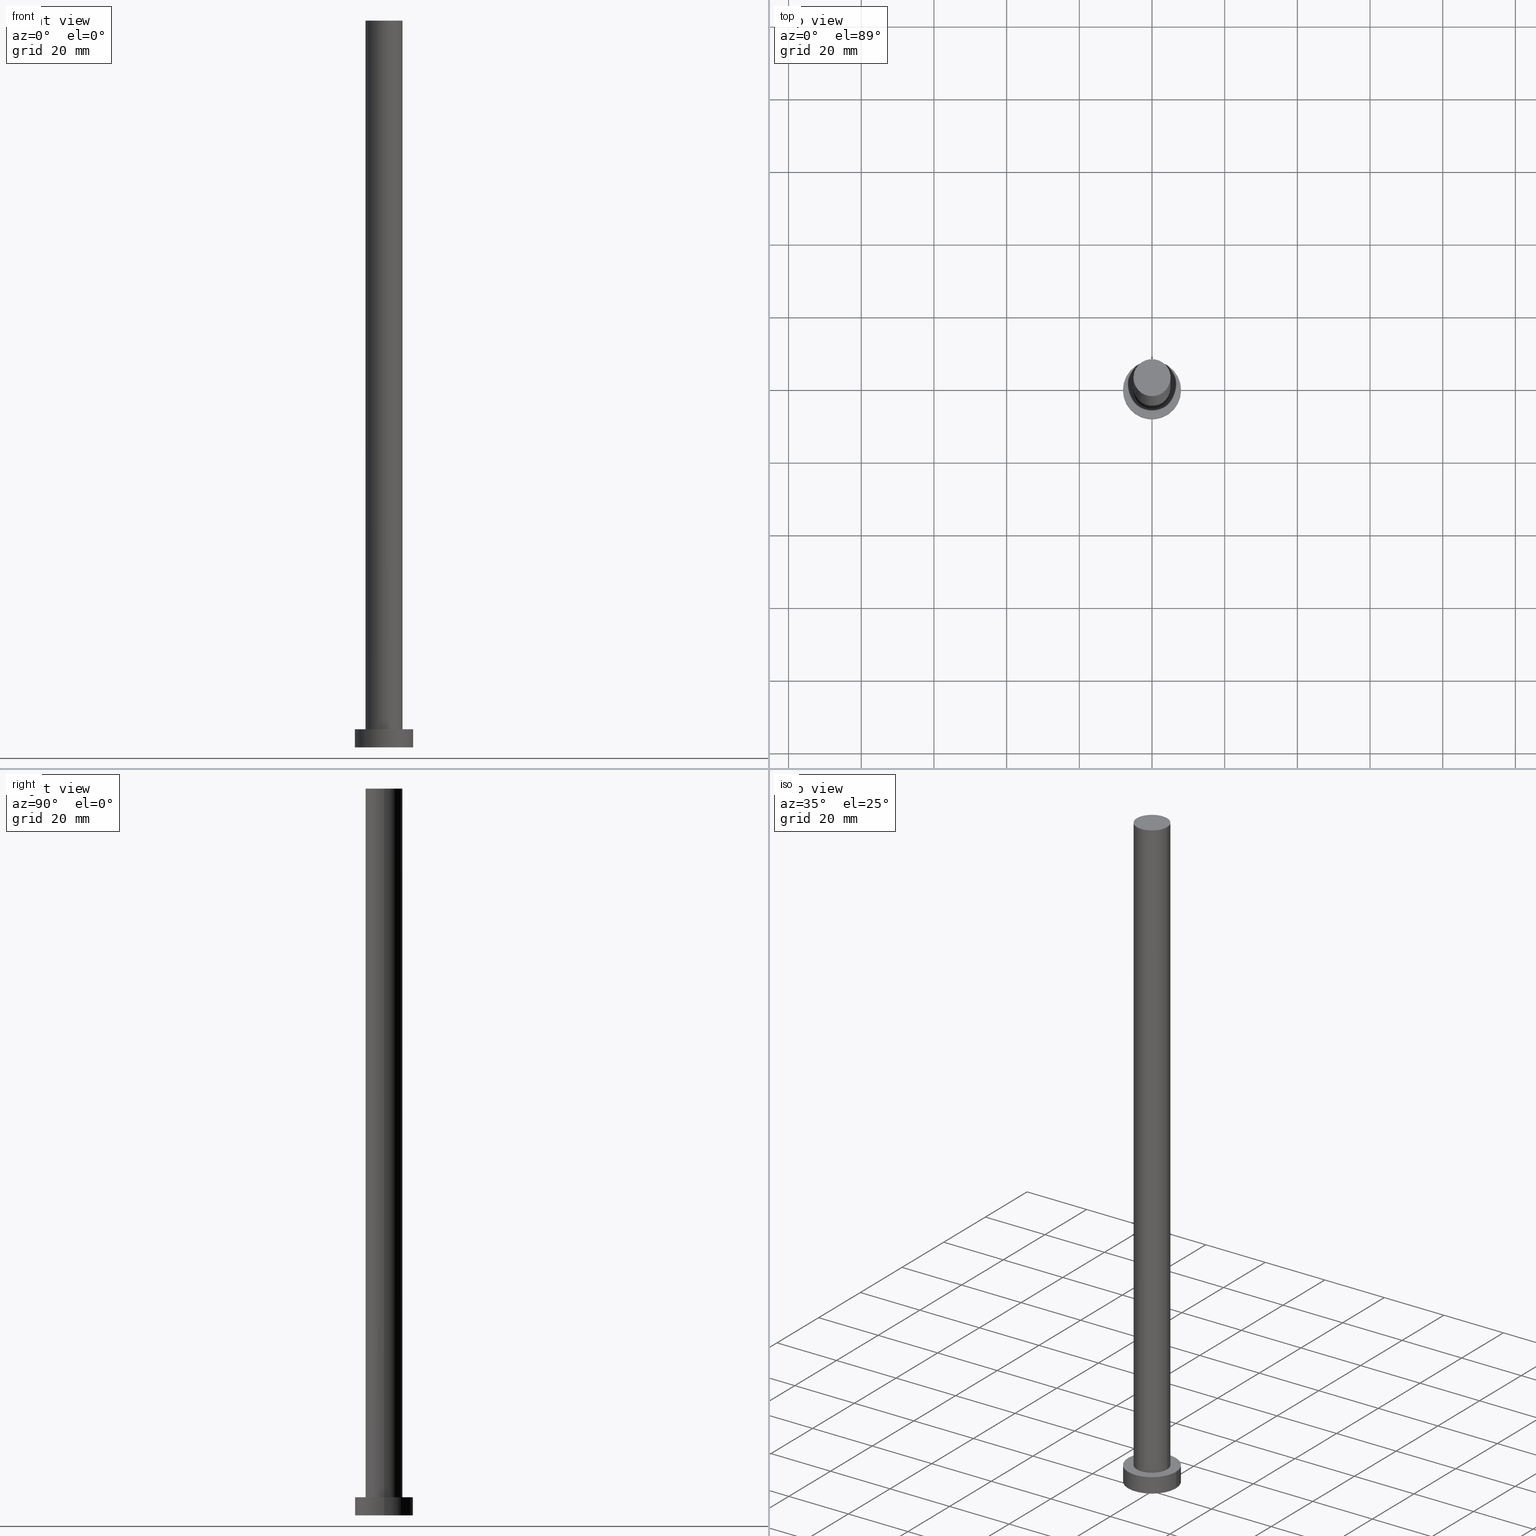
[diagram: canonical four-view strip — front | top / right | iso, engineering-drawing reading convention]
A machine part, canonical four-view strip (front | top / right | iso — engineering-drawing reading convention). The complete STEP part file that produces these views, byte-faithful:
ISO-10303-21;
HEADER;
FILE_DESCRIPTION (( 'STEP AP203' ),
    '1' );
FILE_NAME ('5081.STEP',
    '2023-02-12T11:24:55',
    ( '' ),
    ( '' ),
    'SwSTEP 2.0',
    'SolidWorks 2019',
    '' );
FILE_SCHEMA (( 'CONFIG_CONTROL_DESIGN' ));
ENDSEC;

DATA;
#1 = AXIS2_PLACEMENT_3D ( 'NONE', #143, #224, #202 ) ;
#2 = AXIS2_PLACEMENT_3D ( 'NONE', #117, #198, #238 ) ;
#3 = FACE_OUTER_BOUND ( 'NONE', #116, .T. ) ;
#4 = ORIENTED_EDGE ( 'NONE', *, *, #95, .T. ) ;
#5 = FACE_OUTER_BOUND ( 'NONE', #208, .T. ) ;
#6 = EDGE_LOOP ( 'NONE', ( #43, #107 ) ) ;
#7 = APPROVAL_STATUS ( 'not_yet_approved' ) ;
#8 = ORIENTED_EDGE ( 'NONE', *, *, #11, .T. ) ;
#9 = ADVANCED_FACE ( 'NONE', ( #93, #91 ), #162, .T. ) ;
#10 = AXIS2_PLACEMENT_3D ( 'NONE', #124, #152, #26 ) ;
#11 = EDGE_CURVE ( 'NONE', #77, #64, #148, .T. ) ;
#12 = CARTESIAN_POINT ( 'NONE',  ( 0.000000000000000000, 0.000000000000000000, 5.000000000000000000 ) ) ;
#13 = CARTESIAN_POINT ( 'NONE',  ( 0.000000000000000000, 0.000000000000000000, 0.000000000000000000 ) ) ;
#14 = VERTEX_POINT ( 'NONE', #24 ) ;
#15 = CARTESIAN_POINT ( 'NONE',  ( 0.000000000000000000, 0.000000000000000000, 0.000000000000000000 ) ) ;
#16 = ORIENTED_EDGE ( 'NONE', *, *, #210, .F. ) ;
#17 = DIRECTION ( 'NONE',  ( 0.000000000000000000, 0.000000000000000000, 1.000000000000000000 ) ) ;
#18 = DIRECTION ( 'NONE',  ( 1.000000000000000000, 0.000000000000000000, 0.000000000000000000 ) ) ;
#19 = ORIENTED_EDGE ( 'NONE', *, *, #105, .F. ) ;
#20 = AXIS2_PLACEMENT_3D ( 'NONE', #12, #94, #18 ) ;
#21 = APPLICATION_PROTOCOL_DEFINITION ( 'international standard', 'config_control_design', 1994, #67 ) ;
#22 = VECTOR ( 'NONE', #90, 1000.000000000000000 ) ;
#23 = CALENDAR_DATE ( 2023, 12, 2 ) ;
#24 = CARTESIAN_POINT ( 'NONE',  ( -5.100000000000001421, 0.000000000000000000, 200.0000000000000000 ) ) ;
#25 = DESIGN_CONTEXT ( 'detailed design', #67, 'design' ) ;
#26 = DIRECTION ( 'NONE',  ( 1.000000000000000000, 0.000000000000000000, 0.000000000000000000 ) ) ;
#27 = CIRCLE ( 'NONE', #177, 5.100000000000001421 ) ;
#28 = PLANE ( 'NONE',  #132 ) ;
#29 = APPROVAL_PERSON_ORGANIZATION ( #233, #46, #88 ) ;
#30 = ORIENTED_EDGE ( 'NONE', *, *, #254, .F. ) ;
#31 = DATE_AND_TIME ( #23, #79 ) ;
#32 = LINE ( 'NONE', #106, #78 ) ;
#33 = EDGE_LOOP ( 'NONE', ( #171, #16 ) ) ;
#34 = COORDINATED_UNIVERSAL_TIME_OFFSET ( 1, 0, .AHEAD. ) ;
#35 = AXIS2_PLACEMENT_3D ( 'NONE', #13, #166, #227 ) ;
#36 = EDGE_CURVE ( 'NONE', #89, #14, #27, .T. ) ;
#37 = DATE_AND_TIME ( #131, #133 ) ;
#38 = SHAPE_DEFINITION_REPRESENTATION ( #183, #120 ) ;
#39 = CC_DESIGN_PERSON_AND_ORGANIZATION_ASSIGNMENT ( #49, #189, ( #134 ) ) ;
#40 = DIRECTION ( 'NONE',  ( 0.000000000000000000, 0.000000000000000000, 1.000000000000000000 ) ) ;
#41 = ORIENTED_EDGE ( 'NONE', *, *, #252, .F. ) ;
#42 = CARTESIAN_POINT ( 'NONE',  ( 0.000000000000000000, 0.000000000000000000, 5.000000000000000000 ) ) ;
#43 = ORIENTED_EDGE ( 'NONE', *, *, #216, .T. ) ;
#44 = CC_DESIGN_DATE_AND_TIME_ASSIGNMENT ( #83, #229, ( #212 ) ) ;
#45 = DIRECTION ( 'NONE',  ( 1.000000000000000000, 0.000000000000000000, 0.000000000000000000 ) ) ;
#46 = APPROVAL ( #7, 'NEUR�EN�' ) ;
#47 =( LENGTH_UNIT ( ) NAMED_UNIT ( * ) SI_UNIT ( .MILLI., .METRE. ) );
#48 =( NAMED_UNIT ( * ) SI_UNIT ( $, .STERADIAN. ) SOLID_ANGLE_UNIT ( ) );
#49 = PERSON_AND_ORGANIZATION ( #146, #245 ) ;
#50 = PRODUCT_DEFINITION_FORMATION_WITH_SPECIFIED_SOURCE ( 'LIBOVOLN�', '', #199, .NOT_KNOWN. ) ;
#51 = PERSON_AND_ORGANIZATION_ROLE ( 'classification_officer' ) ;
#52 = CIRCLE ( 'NONE', #240, 8.000000000000000000 ) ;
#53 = PERSON_AND_ORGANIZATION ( #146, #245 ) ;
#54 = COORDINATED_UNIVERSAL_TIME_OFFSET ( 1, 0, .AHEAD. ) ;
#55 = DIRECTION ( 'NONE',  ( 1.000000000000000000, 0.000000000000000000, -0.000000000000000000 ) ) ;
#56 = DIRECTION ( 'NONE',  ( 1.000000000000000000, 0.000000000000000000, 0.000000000000000000 ) ) ;
#57 = ADVANCED_FACE ( 'NONE', ( #126 ), #28, .F. ) ;
#58 = CIRCLE ( 'NONE', #215, 8.000000000000000000 ) ;
#59 = CARTESIAN_POINT ( 'NONE',  ( 0.000000000000000000, 0.000000000000000000, 200.0000000000000000 ) ) ;
#60 = AXIS2_PLACEMENT_3D ( 'NONE', #15, #40, #45 ) ;
#61 = DATE_AND_TIME ( #99, #86 ) ;
#62 = DIRECTION ( 'NONE',  ( -1.000000000000000000, 0.000000000000000000, 0.000000000000000000 ) ) ;
#63 = PERSON_AND_ORGANIZATION ( #146, #245 ) ;
#64 = VERTEX_POINT ( 'NONE', #128 ) ;
#65 = ADVANCED_FACE ( 'NONE', ( #3 ), #82, .T. ) ;
#66 = PERSON_AND_ORGANIZATION_ROLE ( 'design_supplier' ) ;
#67 = APPLICATION_CONTEXT ( 'configuration controlled 3d designs of mechanical parts and assemblies' ) ;
#68 = DIRECTION ( 'NONE',  ( -1.000000000000000000, 0.000000000000000000, 0.000000000000000000 ) ) ;
#69 = DIRECTION ( 'NONE',  ( -0.000000000000000000, -0.000000000000000000, -1.000000000000000000 ) ) ;
#70 = CC_DESIGN_APPROVAL ( #46, ( #50 ) ) ;
#71 = PRODUCT_RELATED_PRODUCT_CATEGORY ( 'detail', '', ( #199 ) ) ;
#72 = DIRECTION ( 'NONE',  ( 0.000000000000000000, 0.000000000000000000, 1.000000000000000000 ) ) ;
#73 = CYLINDRICAL_SURFACE ( 'NONE', #2, 5.100000000000001421 ) ;
#74 = ORIENTED_EDGE ( 'NONE', *, *, #254, .T. ) ;
#75 = CARTESIAN_POINT ( 'NONE',  ( 5.100000000000001421, 6.245698675651502811E-16, 5.000000000000000000 ) ) ;
#76 = EDGE_CURVE ( 'NONE', #201, #77, #32, .T. ) ;
#77 = VERTEX_POINT ( 'NONE', #226 ) ;
#78 = VECTOR ( 'NONE', #165, 1000.000000000000000 ) ;
#79 = LOCAL_TIME ( 12, 24, 55.00000000000000000, #225 ) ;
#80 = CC_DESIGN_DATE_AND_TIME_ASSIGNMENT ( #61, #150, ( #134 ) ) ;
#81 = MECHANICAL_CONTEXT ( 'NONE', #159, 'mechanical' ) ;
#82 = CYLINDRICAL_SURFACE ( 'NONE', #173, 8.000000000000000000 ) ;
#83 = DATE_AND_TIME ( #155, #163 ) ;
#84 = DIRECTION ( 'NONE',  ( 0.000000000000000000, 0.000000000000000000, 1.000000000000000000 ) ) ;
#85 = ADVANCED_FACE ( 'NONE', ( #5 ), #206, .T. ) ;
#86 = LOCAL_TIME ( 12, 24, 55.00000000000000000, #241 ) ;
#87 = AXIS2_PLACEMENT_3D ( 'NONE', #96, #141, #160 ) ;
#88 = APPROVAL_ROLE ( '' ) ;
#89 = VERTEX_POINT ( 'NONE', #109 ) ;
#90 = DIRECTION ( 'NONE',  ( -0.000000000000000000, -0.000000000000000000, -1.000000000000000000 ) ) ;
#91 = FACE_OUTER_BOUND ( 'NONE', #6, .T. ) ;
#92 = CARTESIAN_POINT ( 'NONE',  ( 0.000000000000000000, 0.000000000000000000, 5.000000000000000000 ) ) ;
#93 = FACE_BOUND ( 'NONE', #255, .T. ) ;
#94 = DIRECTION ( 'NONE',  ( 0.000000000000000000, 0.000000000000000000, 1.000000000000000000 ) ) ;
#95 = EDGE_CURVE ( 'NONE', #14, #218, #193, .T. ) ;
#96 = CARTESIAN_POINT ( 'NONE',  ( 0.000000000000000000, 0.000000000000000000, 5.000000000000000000 ) ) ;
#97 = ORIENTED_EDGE ( 'NONE', *, *, #179, .T. ) ;
#98 = CIRCLE ( 'NONE', #1, 5.100000000000001421 ) ;
#99 = CALENDAR_DATE ( 2023, 12, 2 ) ;
#100 = CC_DESIGN_PERSON_AND_ORGANIZATION_ASSIGNMENT ( #149, #209, ( #199 ) ) ;
#101 =( NAMED_UNIT ( * ) PLANE_ANGLE_UNIT ( ) SI_UNIT ( $, .RADIAN. ) );
#102 = AXIS2_PLACEMENT_3D ( 'NONE', #92, #176, #158 ) ;
#103 = CARTESIAN_POINT ( 'NONE',  ( 0.000000000000000000, 0.000000000000000000, 0.000000000000000000 ) ) ;
#104 = APPROVAL_STATUS ( 'not_yet_approved' ) ;
#105 = EDGE_CURVE ( 'NONE', #218, #192, #178, .T. ) ;
#106 = CARTESIAN_POINT ( 'NONE',  ( -8.000000000000000000, 0.000000000000000000, 5.000000000000000000 ) ) ;
#107 = ORIENTED_EDGE ( 'NONE', *, *, #243, .T. ) ;
#108 = APPROVAL_DATE_TIME ( #170, #169 ) ;
#109 = CARTESIAN_POINT ( 'NONE',  ( 5.100000000000001421, 6.245698675651502811E-16, 200.0000000000000000 ) ) ;
#110 = COORDINATED_UNIVERSAL_TIME_OFFSET ( 1, 0, .AHEAD. ) ;
#111 = ADVANCED_FACE ( 'NONE', ( #181 ), #253, .T. ) ;
#112 = CARTESIAN_POINT ( 'NONE',  ( 0.000000000000000000, 0.000000000000000000, 200.0000000000000000 ) ) ;
#113 = ORIENTED_EDGE ( 'NONE', *, *, #76, .F. ) ;
#114 = UNCERTAINTY_MEASURE_WITH_UNIT (LENGTH_MEASURE( 1.000000000000000082E-05 ), #47, 'distance_accuracy_value', 'NONE');
#115 = FACE_OUTER_BOUND ( 'NONE', #221, .T. ) ;
#116 = EDGE_LOOP ( 'NONE', ( #196, #182, #236, #8 ) ) ;
#117 = CARTESIAN_POINT ( 'NONE',  ( 0.000000000000000000, 0.000000000000000000, 200.0000000000000000 ) ) ;
#118 = CARTESIAN_POINT ( 'NONE',  ( 0.000000000000000000, 0.000000000000000000, 5.000000000000000000 ) ) ;
#119 = CARTESIAN_POINT ( 'NONE',  ( -5.100000000000001421, 0.000000000000000000, 5.000000000000000000 ) ) ;
#120 = ADVANCED_BREP_SHAPE_REPRESENTATION ( '5081', ( #123, #10 ), #156 ) ;
#121 = CARTESIAN_POINT ( 'NONE',  ( 0.000000000000000000, 0.000000000000000000, 200.0000000000000000 ) ) ;
#122 = VECTOR ( 'NONE', #69, 1000.000000000000000 ) ;
#123 = MANIFOLD_SOLID_BREP ( 'P�idat vysunut�m3', #244 ) ;
#124 = CARTESIAN_POINT ( 'NONE',  ( 0.000000000000000000, 0.000000000000000000, 0.000000000000000000 ) ) ;
#125 = DIRECTION ( 'NONE',  ( 1.000000000000000000, 0.000000000000000000, 0.000000000000000000 ) ) ;
#126 = FACE_OUTER_BOUND ( 'NONE', #33, .T. ) ;
#127 = AXIS2_PLACEMENT_3D ( 'NONE', #112, #180, #55 ) ;
#128 = CARTESIAN_POINT ( 'NONE',  ( 8.000000000000000000, 9.797174393178825657E-16, 0.000000000000000000 ) ) ;
#129 = APPROVAL_ROLE ( '' ) ;
#130 = ORIENTED_EDGE ( 'NONE', *, *, #36, .T. ) ;
#131 = CALENDAR_DATE ( 2023, 12, 2 ) ;
#132 = AXIS2_PLACEMENT_3D ( 'NONE', #103, #84, #188 ) ;
#133 = LOCAL_TIME ( 12, 24, 55.00000000000000000, #54 ) ;
#134 = PRODUCT_DEFINITION ( 'NEZN�M�', '', #50, #25 ) ;
#135 = SECURITY_CLASSIFICATION_LEVEL ( 'unclassified' ) ;
#136 = CARTESIAN_POINT ( 'NONE',  ( 5.100000000000001421, 6.245698675651502811E-16, 200.0000000000000000 ) ) ;
#137 = CIRCLE ( 'NONE', #20, 5.100000000000001421 ) ;
#138 = DIRECTION ( 'NONE',  ( -0.000000000000000000, -0.000000000000000000, -1.000000000000000000 ) ) ;
#139 = ORIENTED_EDGE ( 'NONE', *, *, #95, .F. ) ;
#140 = PLANE ( 'NONE',  #127 ) ;
#141 = DIRECTION ( 'NONE',  ( 0.000000000000000000, 0.000000000000000000, 1.000000000000000000 ) ) ;
#142 = EDGE_LOOP ( 'NONE', ( #97, #130 ) ) ;
#143 = CARTESIAN_POINT ( 'NONE',  ( 0.000000000000000000, 0.000000000000000000, 200.0000000000000000 ) ) ;
#144 = APPROVAL_ROLE ( '' ) ;
#145 = DIRECTION ( 'NONE',  ( 1.000000000000000000, 0.000000000000000000, -0.000000000000000000 ) ) ;
#146 = PERSON ( 'NEUR�EN�', 'NEUR�EN�', 'NEUR�EN�', ('NEUR�EN�'), ('NEUR�EN�'), ('NEUR�EN�') ) ;
#147 = DIRECTION ( 'NONE',  ( -0.000000000000000000, -0.000000000000000000, -1.000000000000000000 ) ) ;
#148 = CIRCLE ( 'NONE', #35, 8.000000000000000000 ) ;
#149 = PERSON_AND_ORGANIZATION ( #146, #245 ) ;
#150 = DATE_TIME_ROLE ( 'creation_date' ) ;
#151 = CC_DESIGN_PERSON_AND_ORGANIZATION_ASSIGNMENT ( #53, #172, ( #50 ) ) ;
#152 = DIRECTION ( 'NONE',  ( 0.000000000000000000, 0.000000000000000000, 1.000000000000000000 ) ) ;
#153 = APPROVAL_DATE_TIME ( #37, #46 ) ;
#154 = ORIENTED_EDGE ( 'NONE', *, *, #210, .T. ) ;
#155 = CALENDAR_DATE ( 2023, 12, 2 ) ;
#156 =( GEOMETRIC_REPRESENTATION_CONTEXT ( 3 ) GLOBAL_UNCERTAINTY_ASSIGNED_CONTEXT ( ( #114 ) ) GLOBAL_UNIT_ASSIGNED_CONTEXT ( ( #47, #101, #48 ) ) REPRESENTATION_CONTEXT ( 'NONE', 'WORKASPACE' ) );
#157 = ADVANCED_FACE ( 'NONE', ( #115 ), #73, .T. ) ;
#158 = DIRECTION ( 'NONE',  ( -1.000000000000000000, 0.000000000000000000, 0.000000000000000000 ) ) ;
#159 = APPLICATION_CONTEXT ( 'configuration controlled 3d designs of mechanical parts and assemblies' ) ;
#160 = DIRECTION ( 'NONE',  ( 1.000000000000000000, 0.000000000000000000, 0.000000000000000000 ) ) ;
#161 = LINE ( 'NONE', #136, #22 ) ;
#162 = PLANE ( 'NONE',  #222 ) ;
#163 = LOCAL_TIME ( 12, 24, 55.00000000000000000, #110 ) ;
#164 = ORIENTED_EDGE ( 'NONE', *, *, #191, .T. ) ;
#165 = DIRECTION ( 'NONE',  ( -0.000000000000000000, -0.000000000000000000, -1.000000000000000000 ) ) ;
#166 = DIRECTION ( 'NONE',  ( 0.000000000000000000, 0.000000000000000000, 1.000000000000000000 ) ) ;
#167 = CC_DESIGN_APPROVAL ( #169, ( #212 ) ) ;
#168 = APPROVAL_DATE_TIME ( #31, #205 ) ;
#169 = APPROVAL ( #249, 'NEUR�EN�' ) ;
#170 = DATE_AND_TIME ( #213, #184 ) ;
#171 = ORIENTED_EDGE ( 'NONE', *, *, #11, .F. ) ;
#172 = PERSON_AND_ORGANIZATION_ROLE ( 'creator' ) ;
#173 = AXIS2_PLACEMENT_3D ( 'NONE', #185, #247, #62 ) ;
#174 = EDGE_LOOP ( 'NONE', ( #175, #164, #154, #113 ) ) ;
#175 = ORIENTED_EDGE ( 'NONE', *, *, #243, .F. ) ;
#176 = DIRECTION ( 'NONE',  ( -0.000000000000000000, -0.000000000000000000, -1.000000000000000000 ) ) ;
#177 = AXIS2_PLACEMENT_3D ( 'NONE', #121, #207, #125 ) ;
#178 = CIRCLE ( 'NONE', #87, 5.100000000000001421 ) ;
#179 = EDGE_CURVE ( 'NONE', #14, #89, #98, .T. ) ;
#180 = DIRECTION ( 'NONE',  ( 0.000000000000000000, 0.000000000000000000, 1.000000000000000000 ) ) ;
#181 = FACE_OUTER_BOUND ( 'NONE', #174, .T. ) ;
#182 = ORIENTED_EDGE ( 'NONE', *, *, #216, .F. ) ;
#183 = PRODUCT_DEFINITION_SHAPE ( 'NONE', 'NONE',  #134 ) ;
#184 = LOCAL_TIME ( 12, 24, 55.00000000000000000, #34 ) ;
#185 = CARTESIAN_POINT ( 'NONE',  ( 0.000000000000000000, 0.000000000000000000, 5.000000000000000000 ) ) ;
#186 = PERSON_AND_ORGANIZATION ( #146, #245 ) ;
#187 = CC_DESIGN_APPROVAL ( #205, ( #134 ) ) ;
#188 = DIRECTION ( 'NONE',  ( 1.000000000000000000, 0.000000000000000000, -0.000000000000000000 ) ) ;
#189 = PERSON_AND_ORGANIZATION_ROLE ( 'creator' ) ;
#190 = ORIENTED_EDGE ( 'NONE', *, *, #252, .T. ) ;
#191 = EDGE_CURVE ( 'NONE', #203, #64, #235, .T. ) ;
#192 = VERTEX_POINT ( 'NONE', #75 ) ;
#193 = LINE ( 'NONE', #214, #211 ) ;
#194 = CC_DESIGN_SECURITY_CLASSIFICATION ( #212, ( #50 ) ) ;
#195 = CARTESIAN_POINT ( 'NONE',  ( 8.000000000000000000, 9.797174393178825657E-16, 5.000000000000000000 ) ) ;
#196 = ORIENTED_EDGE ( 'NONE', *, *, #191, .F. ) ;
#197 = CC_DESIGN_PERSON_AND_ORGANIZATION_ASSIGNMENT ( #217, #51, ( #212 ) ) ;
#198 = DIRECTION ( 'NONE',  ( -0.000000000000000000, -0.000000000000000000, -1.000000000000000000 ) ) ;
#199 = PRODUCT ( '5081', '5081', '', ( #81 ) ) ;
#200 = APPROVAL_PERSON_ORGANIZATION ( #231, #169, #129 ) ;
#201 = VERTEX_POINT ( 'NONE', #220 ) ;
#202 = DIRECTION ( 'NONE',  ( 1.000000000000000000, 0.000000000000000000, 0.000000000000000000 ) ) ;
#203 = VERTEX_POINT ( 'NONE', #195 ) ;
#204 = DIRECTION ( 'NONE',  ( 1.000000000000000000, 0.000000000000000000, 0.000000000000000000 ) ) ;
#205 = APPROVAL ( #104, 'NEUR�EN�' ) ;
#206 = CYLINDRICAL_SURFACE ( 'NONE', #232, 5.100000000000001421 ) ;
#207 = DIRECTION ( 'NONE',  ( 0.000000000000000000, 0.000000000000000000, 1.000000000000000000 ) ) ;
#208 = EDGE_LOOP ( 'NONE', ( #250, #74, #190, #139 ) ) ;
#209 = PERSON_AND_ORGANIZATION_ROLE ( 'design_owner' ) ;
#210 = EDGE_CURVE ( 'NONE', #64, #77, #248, .T. ) ;
#211 = VECTOR ( 'NONE', #138, 1000.000000000000000 ) ;
#212 = SECURITY_CLASSIFICATION ( '', '', #135 ) ;
#213 = CALENDAR_DATE ( 2023, 12, 2 ) ;
#214 = CARTESIAN_POINT ( 'NONE',  ( -5.100000000000001421, 0.000000000000000000, 200.0000000000000000 ) ) ;
#215 = AXIS2_PLACEMENT_3D ( 'NONE', #42, #72, #56 ) ;
#216 = EDGE_CURVE ( 'NONE', #201, #203, #58, .T. ) ;
#217 = PERSON_AND_ORGANIZATION ( #146, #245 ) ;
#218 = VERTEX_POINT ( 'NONE', #119 ) ;
#219 = CARTESIAN_POINT ( 'NONE',  ( 8.000000000000000000, 9.797174393178825657E-16, 5.000000000000000000 ) ) ;
#220 = CARTESIAN_POINT ( 'NONE',  ( -8.000000000000000000, 0.000000000000000000, 5.000000000000000000 ) ) ;
#221 = EDGE_LOOP ( 'NONE', ( #30, #230, #4, #237 ) ) ;
#222 = AXIS2_PLACEMENT_3D ( 'NONE', #118, #242, #145 ) ;
#223 = CC_DESIGN_PERSON_AND_ORGANIZATION_ASSIGNMENT ( #63, #66, ( #50 ) ) ;
#224 = DIRECTION ( 'NONE',  ( 0.000000000000000000, 0.000000000000000000, 1.000000000000000000 ) ) ;
#225 = COORDINATED_UNIVERSAL_TIME_OFFSET ( 1, 0, .AHEAD. ) ;
#226 = CARTESIAN_POINT ( 'NONE',  ( -8.000000000000000000, 0.000000000000000000, 0.000000000000000000 ) ) ;
#227 = DIRECTION ( 'NONE',  ( 1.000000000000000000, 0.000000000000000000, 0.000000000000000000 ) ) ;
#228 = ADVANCED_FACE ( 'NONE', ( #234 ), #140, .T. ) ;
#229 = DATE_TIME_ROLE ( 'classification_date' ) ;
#230 = ORIENTED_EDGE ( 'NONE', *, *, #179, .F. ) ;
#231 = PERSON_AND_ORGANIZATION ( #146, #245 ) ;
#232 = AXIS2_PLACEMENT_3D ( 'NONE', #59, #147, #68 ) ;
#233 = PERSON_AND_ORGANIZATION ( #146, #245 ) ;
#234 = FACE_OUTER_BOUND ( 'NONE', #142, .T. ) ;
#235 = LINE ( 'NONE', #219, #122 ) ;
#236 = ORIENTED_EDGE ( 'NONE', *, *, #76, .T. ) ;
#237 = ORIENTED_EDGE ( 'NONE', *, *, #105, .T. ) ;
#238 = DIRECTION ( 'NONE',  ( -1.000000000000000000, 0.000000000000000000, 0.000000000000000000 ) ) ;
#239 = CARTESIAN_POINT ( 'NONE',  ( 0.000000000000000000, 0.000000000000000000, 5.000000000000000000 ) ) ;
#240 = AXIS2_PLACEMENT_3D ( 'NONE', #239, #17, #204 ) ;
#241 = COORDINATED_UNIVERSAL_TIME_OFFSET ( 1, 0, .AHEAD. ) ;
#242 = DIRECTION ( 'NONE',  ( 0.000000000000000000, 0.000000000000000000, 1.000000000000000000 ) ) ;
#243 = EDGE_CURVE ( 'NONE', #203, #201, #52, .T. ) ;
#244 = CLOSED_SHELL ( 'NONE', ( #85, #111, #65, #9, #57, #157, #228 ) ) ;
#245 = ORGANIZATION ( 'NEUR�EN�', 'NEUR�EN�', '' ) ;
#246 = APPLICATION_PROTOCOL_DEFINITION ( 'international standard', 'config_control_design', 1994, #159 ) ;
#247 = DIRECTION ( 'NONE',  ( -0.000000000000000000, -0.000000000000000000, -1.000000000000000000 ) ) ;
#248 = CIRCLE ( 'NONE', #60, 8.000000000000000000 ) ;
#249 = APPROVAL_STATUS ( 'not_yet_approved' ) ;
#250 = ORIENTED_EDGE ( 'NONE', *, *, #36, .F. ) ;
#251 = APPROVAL_PERSON_ORGANIZATION ( #186, #205, #144 ) ;
#252 = EDGE_CURVE ( 'NONE', #192, #218, #137, .T. ) ;
#253 = CYLINDRICAL_SURFACE ( 'NONE', #102, 8.000000000000000000 ) ;
#254 = EDGE_CURVE ( 'NONE', #89, #192, #161, .T. ) ;
#255 = EDGE_LOOP ( 'NONE', ( #19, #41 ) ) ;
ENDSEC;
END-ISO-10303-21;
